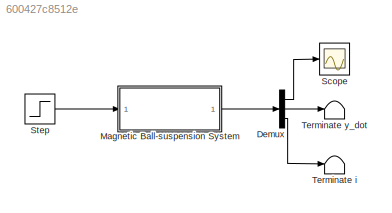
MODEL slx_600427c8512e
KIND model
CONFIG AbsTol = auto
CONFIG EnableMultiTasking = off
CONFIG FixedStep = auto
CONFIG MaxStep = auto
CONFIG MinStep = auto
CONFIG RelTol = 1e-3
CONFIG SampleTimeConstraint = Unconstrained
CONFIG Solver = VariableStepAuto
CONFIG SolverName = VariableStepAuto
CONFIG StartTime = 0.0
CONFIG StopTime = 2
BLOCK [Demux] Demux
  DisplayOption = bar
  Outputs = 3
  Ports = [1, 3]
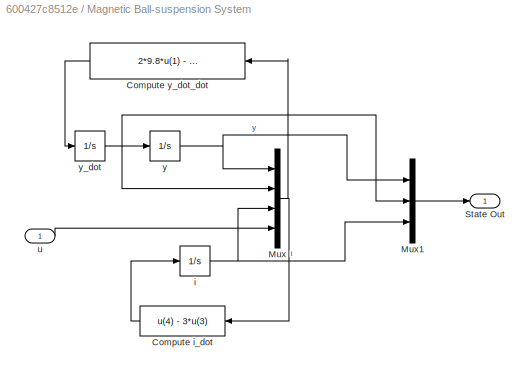
BLOCK [SubSystem] Magnetic Ball-suspension System
  Ports = [1, 1]
  RequestExecContextInheritance = off
BLOCK [Fcn] Magnetic Ball-suspension System/Compute i_dot
  Expr = u(4) - 3*u(3)
BLOCK [Fcn] Magnetic Ball-suspension System/Compute y_dot_dot
  Expr = 2*9.8*u(1) - 2*sqrt(9.8)*u(3)
BLOCK [Mux] Magnetic Ball-suspension System/Mux
  DisplayOption = bar
  Ports = [4, 1]
BLOCK [Mux] Magnetic Ball-suspension System/Mux1
  DisplayOption = bar
  Inputs = 3
  Ports = [3, 1]
BLOCK [Outport] Magnetic Ball-suspension System/State Out
  IconDisplay = Port number
BLOCK [Integrator] Magnetic Ball-suspension System/i
  Ports = [1, 1]
BLOCK [Inport] Magnetic Ball-suspension System/u
  IconDisplay = Port number
BLOCK [Integrator] Magnetic Ball-suspension System/y
  Ports = [1, 1]
BLOCK [Integrator] Magnetic Ball-suspension System/y_dot
  Ports = [1, 1]
BLOCK [Scope] Scope
  Floating = off
  NumInputPorts = 1
  Ports = [1]
  ScopeSpecificationString = Simulink.scopes.TimeScopeBlockCfg('CurrentConfiguration', extmgr.ConfigurationSet(extmgr.Configuration('Core','General UI',true),extmgr.Configuration('Core','Source UI',true),extmgr.Configuration('Sources','WiredSimulink',true),extmgr.Configuration('Visuals','Time Domain',true,'SerializedDisplays',{struct('MinYLimReal','-169.35059','MaxYLimReal','18.81673','YLabelReal','','MinYLimMag',' 0.00000','...<+1368ch>
BLOCK [Step] Step
  SampleTime = 0
  Time = 0
BLOCK [Terminator] Terminate i
BLOCK [Terminator] Terminate y_dot
LINE Demux:1 -> Scope:1
LINE Demux:2 -> Terminate y_dot:1
LINE Demux:3 -> Terminate i:1
LINE Magnetic Ball-suspension System/Compute i_dot:1 -> Magnetic Ball-suspension System/i:1
LINE Magnetic Ball-suspension System/Compute y_dot_dot:1 -> Magnetic Ball-suspension System/y_dot:1
LINE Magnetic Ball-suspension System/Mux1:1 -> Magnetic Ball-suspension System/State Out:1
NET Magnetic Ball-suspension System/Mux:1 -> Magnetic Ball-suspension System/Compute i_dot:1, Magnetic Ball-suspension System/Compute y_dot_dot:1
NET Magnetic Ball-suspension System/i:1 -> Magnetic Ball-suspension System/Mux1:3, Magnetic Ball-suspension System/Mux:3
LINE Magnetic Ball-suspension System/u:1 -> Magnetic Ball-suspension System/Mux:4
NET Magnetic Ball-suspension System/y:1 -> Magnetic Ball-suspension System/Mux1:1, Magnetic Ball-suspension System/Mux:1
NET Magnetic Ball-suspension System/y_dot:1 -> Magnetic Ball-suspension System/Mux1:2, Magnetic Ball-suspension System/Mux:2, Magnetic Ball-suspension System/y:1
LINE Magnetic Ball-suspension System:1 -> Demux:1
LINE Step:1 -> Magnetic Ball-suspension System:1
note: NET lines group one-source signal fan-out (src -> all destinations, sorted); 1:1 wires keep LINE
